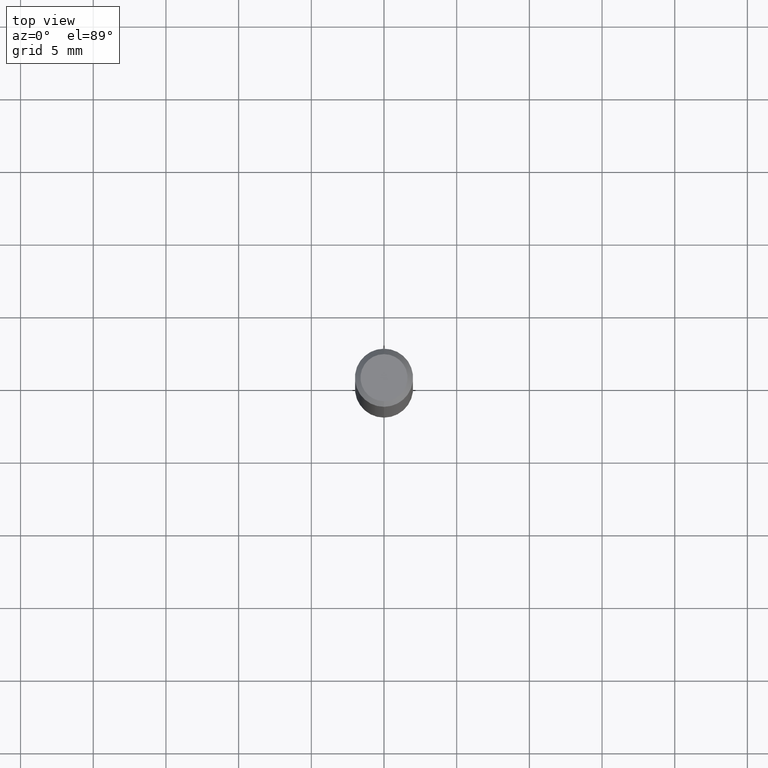
[diagram: clean part render]
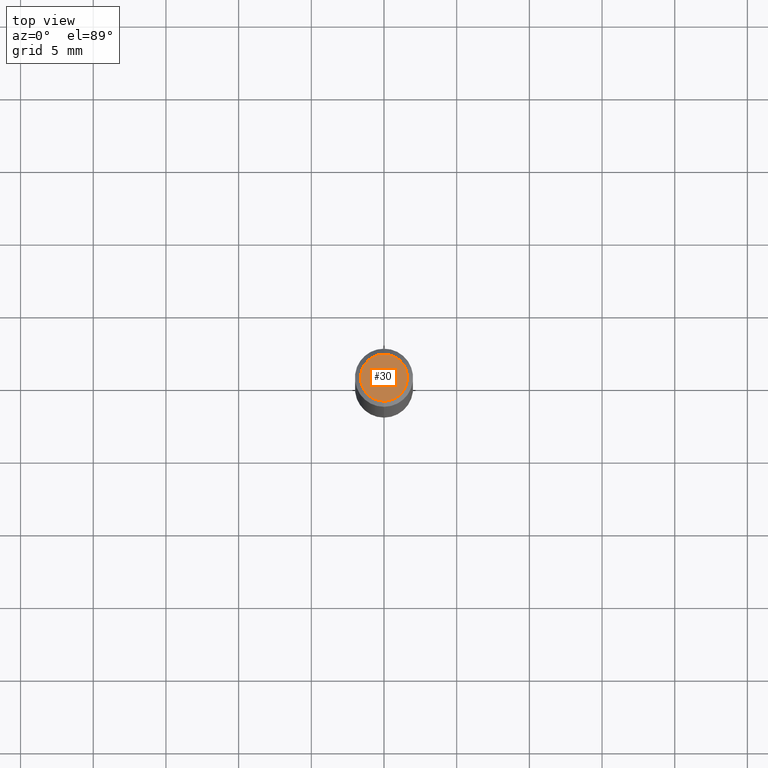
[diagram: same view with one face highlighted and labeled with its STEP entity id]
A machine part, top view. The second image highlights one B-rep face of the part: STEP entity #30.
In plain terms, the highlighted planar face has unit normal (0, -0, -1).
Its self-contained STEP definition (entity closure, byte-faithful):
#3 = DIRECTION ( 'NONE',  ( -6.982962677686264344E-15, -1.000000000000000000, 3.491511468994125374E-15 ) ) ;
#19 = CARTESIAN_POINT ( 'NONE',  ( 4.451638707024993845E-16, 0.06375000000000000111, -1.050337537933412309E-16 ) ) ;
#20 = CIRCLE ( 'NONE', #80, 0.06375000000000000111 ) ;
#30 = ADVANCED_FACE ( 'NONE', ( #494 ), #291, .F. ) ;
#80 = AXIS2_PLACEMENT_3D ( 'NONE', #175, #173, #342 ) ;
#93 = DIRECTION ( 'NONE',  ( 2.445447766413159620E-29, -3.491511468994125769E-15, -1.000000000000000000 ) ) ;
#119 = EDGE_LOOP ( 'NONE', ( #270, #445 ) ) ;
#129 = AXIS2_PLACEMENT_3D ( 'NONE', #279, #323, #3 ) ;
#149 = EDGE_CURVE ( 'NONE', #161, #198, #20, .T. ) ;
#161 = VERTEX_POINT ( 'NONE', #346 ) ;
#173 = DIRECTION ( 'NONE',  ( -2.445447766413159620E-29, 3.491511468994126163E-15, 1.000000000000000000 ) ) ;
#175 = CARTESIAN_POINT ( 'NONE',  ( -5.749252704915138258E-45, 8.208550611080714984E-31, 2.351002047100685974E-16 ) ) ;
#198 = VERTEX_POINT ( 'NONE', #257 ) ;
#257 = CARTESIAN_POINT ( 'NONE',  ( 4.975360907851465623E-16, 0.06375000000000000111, 1.251634856169309859E-17 ) ) ;
#270 = ORIENTED_EDGE ( 'NONE', *, *, #404, .T. ) ;
#279 = CARTESIAN_POINT ( 'NONE',  ( -5.749252704915138258E-45, 8.208550611080714984E-31, 2.351002047100685974E-16 ) ) ;
#291 = PLANE ( 'NONE',  #354 ) ;
#323 = DIRECTION ( 'NONE',  ( -2.445447766413159620E-29, 3.491511468994126163E-15, 1.000000000000000000 ) ) ;
#342 = DIRECTION ( 'NONE',  ( -6.982962677686264344E-15, -1.000000000000000000, 3.491511468994125374E-15 ) ) ;
#346 = CARTESIAN_POINT ( 'NONE',  ( -4.888104823412213911E-16, -0.06375000000000000111, 4.576840608584440900E-16 ) ) ;
#354 = AXIS2_PLACEMENT_3D ( 'NONE', #19, #93, #385 ) ;
#385 = DIRECTION ( 'NONE',  ( 6.982962677686265922E-15, 1.000000000000000000, -3.491511468994125769E-15 ) ) ;
#404 = EDGE_CURVE ( 'NONE', #198, #161, #483, .T. ) ;
#445 = ORIENTED_EDGE ( 'NONE', *, *, #149, .T. ) ;
#483 = CIRCLE ( 'NONE', #129, 0.06375000000000000111 ) ;
#494 = FACE_OUTER_BOUND ( 'NONE', #119, .T. ) ;